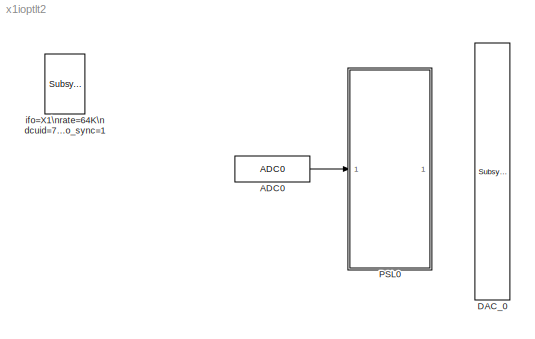
MODEL x1ioptlt2
KIND model
BLOCK [Reference] ADC0  REF=cdsAdcx0/ADC0
  AllowZeroVariantControls = off
  AttributesFormatString = %<Description>\\n%<Tag>
  Description = type-GSC_16AI64SSA\ncard_num=0
  GeneratePreprocessorConditionals = off
  Ports = [0, 1]
  PropagateVariantConditions = off
  SID = 1
  ShowPortLabels = FromPortIcon
  SourceBlock = cdsAdcx0/ADC0
  SourceType = SubSystem
  SystemSampleTime = -1
  Tag = cdsAdc
BLOCK [Reference] DAC_0  REF=dac/Subsystem  (lib defined in slx_40ef132df75b, slx_b7657ccccc5b, +4 more)
  AllowZeroVariantControls = off
  AttributesFormatString = %<Description>
  Description = type=GSC_16AO16,\ncard_num=0
  GeneratePreprocessorConditionals = off
  Ports = [16]
  PropagateVariantConditions = off
  SID = 952
  ShowPortLabels = FromPortIcon
  SourceBlock = dac/Subsystem
  SourceType = SubSystem
  SystemSampleTime = -1
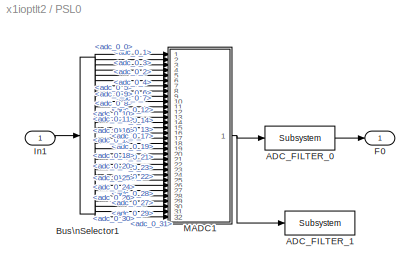
BLOCK [SubSystem] PSL0
  Ports = [1, 1]
  RequestExecContextInheritance = off
  SID = 937
BLOCK [Reference] PSL0/ADC_FILTER_0  REF=cdsFilt/Subsystem
  AllowZeroVariantControls = off
  AttributesFormatString = %<Tag>
  Description = Purpose:                                                                                                                                                                                                                                  \nStandard CDS IIR filter module.                                                                                                                                     ...<+1302ch>
  GeneratePreprocessorConditionals = off
  Ports = [1, 1]
  PropagateVariantConditions = off
  SID = 1477
  ShowPortLabels = FromPortIcon
  SourceBlock = cdsFilt/Subsystem
  SourceType = SubSystem
  SystemSampleTime = -1
  Tag = cdsFilt
BLOCK [Reference] PSL0/ADC_FILTER_1  REF=cdsFilt/Subsystem
  AllowZeroVariantControls = off
  AttributesFormatString = %<Tag>
  Description = Purpose:                                                                                                                                                                                                                                  \nStandard CDS IIR filter module.                                                                                                                                     ...<+1302ch>
  GeneratePreprocessorConditionals = off
  Ports = [1, 1]
  PropagateVariantConditions = off
  SID = 1478
  ShowPortLabels = FromPortIcon
  SourceBlock = cdsFilt/Subsystem
  SourceType = SubSystem
  SystemSampleTime = -1
  Tag = cdsFilt
BLOCK [BusSelector] PSL0/Bus\nSelector1
  AttributesFormatString = %<Description>
  Description = ADC Selector
  OutputAsBus = off
  OutputSignals = adc_0_0,adc_0_1,adc_0_2,adc_0_3,adc_0_4,adc_0_5,adc_0_6,adc_0_7,adc_0_8,adc_0_9,adc_0_10,adc_0_11,adc_0_12,adc_0_13,adc_0_14,adc_0_15,adc_0_16,adc_0_17,adc_0_18,adc_0_19,adc_0_20,adc_0_21,adc_0_22,adc_0_23,adc_0_24,adc_0_25,adc_0_26,adc_0_27,adc_0_28,adc_0_29,adc_0_30,adc_0_31
  Ports = [1, 32]
  SID = 1479
BLOCK [Outport] PSL0/F0
  IconDisplay = Port number
  SID = 1578
BLOCK [Inport] PSL0/In1
  IconDisplay = Port number
  SID = 1476
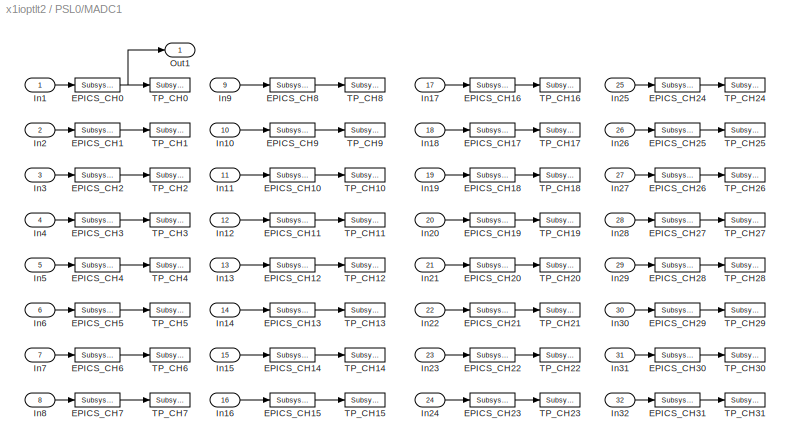
BLOCK [SubSystem] PSL0/MADC1
  Ports = [32, 1]
  RequestExecContextInheritance = off
  SID = 1480
BLOCK [Reference] PSL0/MADC1/EPICS_CH0  REF=cdsEpicsOut/Subsystem
  AllowZeroVariantControls = off
  AttributesFormatString = %<Tag>
  Description = Purpose:                                          \nOutput a FE signal to an EPICS channel.           \n                                                  \nOperation:                                        \nTakes input value and passes it to EPICS record.  \n                                                  \nUsage:                                            \nName the part with the desired EPICS...<+14ch>  <repeated x32 — deduplicated; at blocks: EPICS_CH0, EPICS_CH1, EPICS_CH10, EPICS_CH11, EPICS_CH12, EPICS_CH13, EPICS_CH14, EPICS_CH15, EPICS_CH16, EPICS_CH17, EPICS_CH18, EPICS_CH19, EPICS_CH2, EPICS_CH20, EPICS_CH21, EPICS_CH22, +16 more>
  GeneratePreprocessorConditionals = off
  Ports = [1, 1]
  PropagateVariantConditions = off
  SID = 1513
  ShowPortLabels = FromPortIcon
  SourceBlock = cdsEpicsOut/Subsystem
  SourceType = SubSystem
  SystemSampleTime = -1
  Tag = cdsEpicsOutput
BLOCK [Reference] PSL0/MADC1/EPICS_CH1  REF=cdsEpicsOut/Subsystem
  AllowZeroVariantControls = off
  AttributesFormatString = %<Tag>
  GeneratePreprocessorConditionals = off
  Ports = [1, 1]
  PropagateVariantConditions = off
  SID = 1514
  ShowPortLabels = FromPortIcon
  SourceBlock = cdsEpicsOut/Subsystem
  SourceType = SubSystem
  SystemSampleTime = -1
  Tag = cdsEpicsOutput
BLOCK [Reference] PSL0/MADC1/EPICS_CH10  REF=cdsEpicsOut/Subsystem
  AllowZeroVariantControls = off
  AttributesFormatString = %<Tag>
  GeneratePreprocessorConditionals = off
  Ports = [1, 1]
  PropagateVariantConditions = off
  SID = 1515
  ShowPortLabels = FromPortIcon
  SourceBlock = cdsEpicsOut/Subsystem
  SourceType = SubSystem
  SystemSampleTime = -1
  Tag = cdsEpicsOutput
BLOCK [Reference] PSL0/MADC1/EPICS_CH11  REF=cdsEpicsOut/Subsystem
  AllowZeroVariantControls = off
  AttributesFormatString = %<Tag>
  GeneratePreprocessorConditionals = off
  Ports = [1, 1]
  PropagateVariantConditions = off
  SID = 1516
  ShowPortLabels = FromPortIcon
  SourceBlock = cdsEpicsOut/Subsystem
  SourceType = SubSystem
  SystemSampleTime = -1
  Tag = cdsEpicsOutput
BLOCK [Reference] PSL0/MADC1/EPICS_CH12  REF=cdsEpicsOut/Subsystem
  AllowZeroVariantControls = off
  AttributesFormatString = %<Tag>
  GeneratePreprocessorConditionals = off
  Ports = [1, 1]
  PropagateVariantConditions = off
  SID = 1517
  ShowPortLabels = FromPortIcon
  SourceBlock = cdsEpicsOut/Subsystem
  SourceType = SubSystem
  SystemSampleTime = -1
  Tag = cdsEpicsOutput
BLOCK [Reference] PSL0/MADC1/EPICS_CH13  REF=cdsEpicsOut/Subsystem
  AllowZeroVariantControls = off
  AttributesFormatString = %<Tag>
  GeneratePreprocessorConditionals = off
  Ports = [1, 1]
  PropagateVariantConditions = off
  SID = 1518
  ShowPortLabels = FromPortIcon
  SourceBlock = cdsEpicsOut/Subsystem
  SourceType = SubSystem
  SystemSampleTime = -1
  Tag = cdsEpicsOutput
BLOCK [Reference] PSL0/MADC1/EPICS_CH14  REF=cdsEpicsOut/Subsystem
  AllowZeroVariantControls = off
  AttributesFormatString = %<Tag>
  GeneratePreprocessorConditionals = off
  Ports = [1, 1]
  PropagateVariantConditions = off
  SID = 1519
  ShowPortLabels = FromPortIcon
  SourceBlock = cdsEpicsOut/Subsystem
  SourceType = SubSystem
  SystemSampleTime = -1
  Tag = cdsEpicsOutput
BLOCK [Reference] PSL0/MADC1/EPICS_CH15  REF=cdsEpicsOut/Subsystem
  AllowZeroVariantControls = off
  AttributesFormatString = %<Tag>
  GeneratePreprocessorConditionals = off
  Ports = [1, 1]
  PropagateVariantConditions = off
  SID = 1520
  ShowPortLabels = FromPortIcon
  SourceBlock = cdsEpicsOut/Subsystem
  SourceType = SubSystem
  SystemSampleTime = -1
  Tag = cdsEpicsOutput
BLOCK [Reference] PSL0/MADC1/EPICS_CH16  REF=cdsEpicsOut/Subsystem
  AllowZeroVariantControls = off
  AttributesFormatString = %<Tag>
  GeneratePreprocessorConditionals = off
  Ports = [1, 1]
  PropagateVariantConditions = off
  SID = 1521
  ShowPortLabels = FromPortIcon
  SourceBlock = cdsEpicsOut/Subsystem
  SourceType = SubSystem
  SystemSampleTime = -1
  Tag = cdsEpicsOutput
BLOCK [Reference] PSL0/MADC1/EPICS_CH17  REF=cdsEpicsOut/Subsystem
  AllowZeroVariantControls = off
  AttributesFormatString = %<Tag>
  GeneratePreprocessorConditionals = off
  Ports = [1, 1]
  PropagateVariantConditions = off
  SID = 1522
  ShowPortLabels = FromPortIcon
  SourceBlock = cdsEpicsOut/Subsystem
  SourceType = SubSystem
  SystemSampleTime = -1
  Tag = cdsEpicsOutput
BLOCK [Reference] PSL0/MADC1/EPICS_CH18  REF=cdsEpicsOut/Subsystem
  AllowZeroVariantControls = off
  AttributesFormatString = %<Tag>
  GeneratePreprocessorConditionals = off
  Ports = [1, 1]
  PropagateVariantConditions = off
  SID = 1523
  ShowPortLabels = FromPortIcon
  SourceBlock = cdsEpicsOut/Subsystem
  SourceType = SubSystem
  SystemSampleTime = -1
  Tag = cdsEpicsOutput
BLOCK [Reference] PSL0/MADC1/EPICS_CH19  REF=cdsEpicsOut/Subsystem
  AllowZeroVariantControls = off
  AttributesFormatString = %<Tag>
  GeneratePreprocessorConditionals = off
  Ports = [1, 1]
  PropagateVariantConditions = off
  SID = 1524
  ShowPortLabels = FromPortIcon
  SourceBlock = cdsEpicsOut/Subsystem
  SourceType = SubSystem
  SystemSampleTime = -1
  Tag = cdsEpicsOutput
BLOCK [Reference] PSL0/MADC1/EPICS_CH2  REF=cdsEpicsOut/Subsystem
  AllowZeroVariantControls = off
  AttributesFormatString = %<Tag>
  GeneratePreprocessorConditionals = off
  Ports = [1, 1]
  PropagateVariantConditions = off
  SID = 1525
  ShowPortLabels = FromPortIcon
  SourceBlock = cdsEpicsOut/Subsystem
  SourceType = SubSystem
  SystemSampleTime = -1
  Tag = cdsEpicsOutput
BLOCK [Reference] PSL0/MADC1/EPICS_CH20  REF=cdsEpicsOut/Subsystem
  AllowZeroVariantControls = off
  AttributesFormatString = %<Tag>
  GeneratePreprocessorConditionals = off
  Ports = [1, 1]
  PropagateVariantConditions = off
  SID = 1526
  ShowPortLabels = FromPortIcon
  SourceBlock = cdsEpicsOut/Subsystem
  SourceType = SubSystem
  SystemSampleTime = -1
  Tag = cdsEpicsOutput
BLOCK [Reference] PSL0/MADC1/EPICS_CH21  REF=cdsEpicsOut/Subsystem
  AllowZeroVariantControls = off
  AttributesFormatString = %<Tag>
  GeneratePreprocessorConditionals = off
  Ports = [1, 1]
  PropagateVariantConditions = off
  SID = 1527
  ShowPortLabels = FromPortIcon
  SourceBlock = cdsEpicsOut/Subsystem
  SourceType = SubSystem
  SystemSampleTime = -1
  Tag = cdsEpicsOutput
BLOCK [Reference] PSL0/MADC1/EPICS_CH22  REF=cdsEpicsOut/Subsystem
  AllowZeroVariantControls = off
  AttributesFormatString = %<Tag>
  GeneratePreprocessorConditionals = off
  Ports = [1, 1]
  PropagateVariantConditions = off
  SID = 1528
  ShowPortLabels = FromPortIcon
  SourceBlock = cdsEpicsOut/Subsystem
  SourceType = SubSystem
  SystemSampleTime = -1
  Tag = cdsEpicsOutput
BLOCK [Reference] PSL0/MADC1/EPICS_CH23  REF=cdsEpicsOut/Subsystem
  AllowZeroVariantControls = off
  AttributesFormatString = %<Tag>
  GeneratePreprocessorConditionals = off
  Ports = [1, 1]
  PropagateVariantConditions = off
  SID = 1529
  ShowPortLabels = FromPortIcon
  SourceBlock = cdsEpicsOut/Subsystem
  SourceType = SubSystem
  SystemSampleTime = -1
  Tag = cdsEpicsOutput
BLOCK [Reference] PSL0/MADC1/EPICS_CH24  REF=cdsEpicsOut/Subsystem
  AllowZeroVariantControls = off
  AttributesFormatString = %<Tag>
  GeneratePreprocessorConditionals = off
  Ports = [1, 1]
  PropagateVariantConditions = off
  SID = 1530
  ShowPortLabels = FromPortIcon
  SourceBlock = cdsEpicsOut/Subsystem
  SourceType = SubSystem
  SystemSampleTime = -1
  Tag = cdsEpicsOutput
BLOCK [Reference] PSL0/MADC1/EPICS_CH25  REF=cdsEpicsOut/Subsystem
  AllowZeroVariantControls = off
  AttributesFormatString = %<Tag>
  GeneratePreprocessorConditionals = off
  Ports = [1, 1]
  PropagateVariantConditions = off
  SID = 1531
  ShowPortLabels = FromPortIcon
  SourceBlock = cdsEpicsOut/Subsystem
  SourceType = SubSystem
  SystemSampleTime = -1
  Tag = cdsEpicsOutput
BLOCK [Reference] PSL0/MADC1/EPICS_CH26  REF=cdsEpicsOut/Subsystem
  AllowZeroVariantControls = off
  AttributesFormatString = %<Tag>
  GeneratePreprocessorConditionals = off
  Ports = [1, 1]
  PropagateVariantConditions = off
  SID = 1532
  ShowPortLabels = FromPortIcon
  SourceBlock = cdsEpicsOut/Subsystem
  SourceType = SubSystem
  SystemSampleTime = -1
  Tag = cdsEpicsOutput
BLOCK [Reference] PSL0/MADC1/EPICS_CH27  REF=cdsEpicsOut/Subsystem
  AllowZeroVariantControls = off
  AttributesFormatString = %<Tag>
  GeneratePreprocessorConditionals = off
  Ports = [1, 1]
  PropagateVariantConditions = off
  SID = 1533
  ShowPortLabels = FromPortIcon
  SourceBlock = cdsEpicsOut/Subsystem
  SourceType = SubSystem
  SystemSampleTime = -1
  Tag = cdsEpicsOutput
BLOCK [Reference] PSL0/MADC1/EPICS_CH28  REF=cdsEpicsOut/Subsystem
  AllowZeroVariantControls = off
  AttributesFormatString = %<Tag>
  GeneratePreprocessorConditionals = off
  Ports = [1, 1]
  PropagateVariantConditions = off
  SID = 1534
  ShowPortLabels = FromPortIcon
  SourceBlock = cdsEpicsOut/Subsystem
  SourceType = SubSystem
  SystemSampleTime = -1
  Tag = cdsEpicsOutput
BLOCK [Reference] PSL0/MADC1/EPICS_CH29  REF=cdsEpicsOut/Subsystem
  AllowZeroVariantControls = off
  AttributesFormatString = %<Tag>
  GeneratePreprocessorConditionals = off
  Ports = [1, 1]
  PropagateVariantConditions = off
  SID = 1535
  ShowPortLabels = FromPortIcon
  SourceBlock = cdsEpicsOut/Subsystem
  SourceType = SubSystem
  SystemSampleTime = -1
  Tag = cdsEpicsOutput
BLOCK [Reference] PSL0/MADC1/EPICS_CH3  REF=cdsEpicsOut/Subsystem
  AllowZeroVariantControls = off
  AttributesFormatString = %<Tag>
  GeneratePreprocessorConditionals = off
  Ports = [1, 1]
  PropagateVariantConditions = off
  SID = 1536
  ShowPortLabels = FromPortIcon
  SourceBlock = cdsEpicsOut/Subsystem
  SourceType = SubSystem
  SystemSampleTime = -1
  Tag = cdsEpicsOutput
BLOCK [Reference] PSL0/MADC1/EPICS_CH30  REF=cdsEpicsOut/Subsystem
  AllowZeroVariantControls = off
  AttributesFormatString = %<Tag>
  GeneratePreprocessorConditionals = off
  Ports = [1, 1]
  PropagateVariantConditions = off
  SID = 1537
  ShowPortLabels = FromPortIcon
  SourceBlock = cdsEpicsOut/Subsystem
  SourceType = SubSystem
  SystemSampleTime = -1
  Tag = cdsEpicsOutput
BLOCK [Reference] PSL0/MADC1/EPICS_CH31  REF=cdsEpicsOut/Subsystem
  AllowZeroVariantControls = off
  AttributesFormatString = %<Tag>
  GeneratePreprocessorConditionals = off
  Ports = [1, 1]
  PropagateVariantConditions = off
  SID = 1538
  ShowPortLabels = FromPortIcon
  SourceBlock = cdsEpicsOut/Subsystem
  SourceType = SubSystem
  SystemSampleTime = -1
  Tag = cdsEpicsOutput
BLOCK [Reference] PSL0/MADC1/EPICS_CH4  REF=cdsEpicsOut/Subsystem
  AllowZeroVariantControls = off
  AttributesFormatString = %<Tag>
  GeneratePreprocessorConditionals = off
  Ports = [1, 1]
  PropagateVariantConditions = off
  SID = 1539
  ShowPortLabels = FromPortIcon
  SourceBlock = cdsEpicsOut/Subsystem
  SourceType = SubSystem
  SystemSampleTime = -1
  Tag = cdsEpicsOutput
BLOCK [Reference] PSL0/MADC1/EPICS_CH5  REF=cdsEpicsOut/Subsystem
  AllowZeroVariantControls = off
  AttributesFormatString = %<Tag>
  GeneratePreprocessorConditionals = off
  Ports = [1, 1]
  PropagateVariantConditions = off
  SID = 1540
  ShowPortLabels = FromPortIcon
  SourceBlock = cdsEpicsOut/Subsystem
  SourceType = SubSystem
  SystemSampleTime = -1
  Tag = cdsEpicsOutput
BLOCK [Reference] PSL0/MADC1/EPICS_CH6  REF=cdsEpicsOut/Subsystem
  AllowZeroVariantControls = off
  AttributesFormatString = %<Tag>
  GeneratePreprocessorConditionals = off
  Ports = [1, 1]
  PropagateVariantConditions = off
  SID = 1541
  ShowPortLabels = FromPortIcon
  SourceBlock = cdsEpicsOut/Subsystem
  SourceType = SubSystem
  SystemSampleTime = -1
  Tag = cdsEpicsOutput
BLOCK [Reference] PSL0/MADC1/EPICS_CH7  REF=cdsEpicsOut/Subsystem
  AllowZeroVariantControls = off
  AttributesFormatString = %<Tag>
  GeneratePreprocessorConditionals = off
  Ports = [1, 1]
  PropagateVariantConditions = off
  SID = 1542
  ShowPortLabels = FromPortIcon
  SourceBlock = cdsEpicsOut/Subsystem
  SourceType = SubSystem
  SystemSampleTime = -1
  Tag = cdsEpicsOutput
BLOCK [Reference] PSL0/MADC1/EPICS_CH8  REF=cdsEpicsOut/Subsystem
  AllowZeroVariantControls = off
  AttributesFormatString = %<Tag>
  GeneratePreprocessorConditionals = off
  Ports = [1, 1]
  PropagateVariantConditions = off
  SID = 1543
  ShowPortLabels = FromPortIcon
  SourceBlock = cdsEpicsOut/Subsystem
  SourceType = SubSystem
  SystemSampleTime = -1
  Tag = cdsEpicsOutput
BLOCK [Reference] PSL0/MADC1/EPICS_CH9  REF=cdsEpicsOut/Subsystem
  AllowZeroVariantControls = off
  AttributesFormatString = %<Tag>
  GeneratePreprocessorConditionals = off
  Ports = [1, 1]
  PropagateVariantConditions = off
  SID = 1544
  ShowPortLabels = FromPortIcon
  SourceBlock = cdsEpicsOut/Subsystem
  SourceType = SubSystem
  SystemSampleTime = -1
  Tag = cdsEpicsOutput
BLOCK [Inport] PSL0/MADC1/In1
  IconDisplay = Port number
  SID = 1481
BLOCK [Inport] PSL0/MADC1/In10
  IconDisplay = Port number
  Port = 10
  SID = 1490
BLOCK [Inport] PSL0/MADC1/In11
  IconDisplay = Port number
  Port = 11
  SID = 1491
BLOCK [Inport] PSL0/MADC1/In12
  IconDisplay = Port number
  Port = 12
  SID = 1492
BLOCK [Inport] PSL0/MADC1/In13
  IconDisplay = Port number
  Port = 13
  SID = 1493
BLOCK [Inport] PSL0/MADC1/In14
  IconDisplay = Port number
  Port = 14
  SID = 1494
BLOCK [Inport] PSL0/MADC1/In15
  IconDisplay = Port number
  Port = 15
  SID = 1495
BLOCK [Inport] PSL0/MADC1/In16
  IconDisplay = Port number
  Port = 16
  SID = 1496
BLOCK [Inport] PSL0/MADC1/In17
  IconDisplay = Port number
  Port = 17
  SID = 1497
BLOCK [Inport] PSL0/MADC1/In18
  IconDisplay = Port number
  Port = 18
  SID = 1498
BLOCK [Inport] PSL0/MADC1/In19
  IconDisplay = Port number
  Port = 19
  SID = 1499
BLOCK [Inport] PSL0/MADC1/In2
  IconDisplay = Port number
  Port = 2
  SID = 1482
BLOCK [Inport] PSL0/MADC1/In20
  IconDisplay = Port number
  Port = 20
  SID = 1500
BLOCK [Inport] PSL0/MADC1/In21
  IconDisplay = Port number
  Port = 21
  SID = 1501
BLOCK [Inport] PSL0/MADC1/In22
  IconDisplay = Port number
  Port = 22
  SID = 1502
BLOCK [Inport] PSL0/MADC1/In23
  IconDisplay = Port number
  Port = 23
  SID = 1503
BLOCK [Inport] PSL0/MADC1/In24
  IconDisplay = Port number
  Port = 24
  SID = 1504
BLOCK [Inport] PSL0/MADC1/In25
  IconDisplay = Port number
  Port = 25
  SID = 1505
BLOCK [Inport] PSL0/MADC1/In26
  IconDisplay = Port number
  Port = 26
  SID = 1506
BLOCK [Inport] PSL0/MADC1/In27
  IconDisplay = Port number
  Port = 27
  SID = 1507
BLOCK [Inport] PSL0/MADC1/In28
  IconDisplay = Port number
  Port = 28
  SID = 1508
BLOCK [Inport] PSL0/MADC1/In29
  IconDisplay = Port number
  Port = 29
  SID = 1509
BLOCK [Inport] PSL0/MADC1/In3
  IconDisplay = Port number
  Port = 3
  SID = 1483
BLOCK [Inport] PSL0/MADC1/In30
  IconDisplay = Port number
  Port = 30
  SID = 1510
BLOCK [Inport] PSL0/MADC1/In31
  IconDisplay = Port number
  Port = 31
  SID = 1511
BLOCK [Inport] PSL0/MADC1/In32
  IconDisplay = Port number
  Port = 32
  SID = 1512
BLOCK [Inport] PSL0/MADC1/In4
  IconDisplay = Port number
  Port = 4
  SID = 1484
BLOCK [Inport] PSL0/MADC1/In5
  IconDisplay = Port number
  Port = 5
  SID = 1485
BLOCK [Inport] PSL0/MADC1/In6
  IconDisplay = Port number
  Port = 6
  SID = 1486
BLOCK [Inport] PSL0/MADC1/In7
  IconDisplay = Port number
  Port = 7
  SID = 1487
BLOCK [Inport] PSL0/MADC1/In8
  IconDisplay = Port number
  Port = 8
  SID = 1488
BLOCK [Inport] PSL0/MADC1/In9
  IconDisplay = Port number
  Port = 9
  SID = 1489
BLOCK [Outport] PSL0/MADC1/Out1
  IconDisplay = Port number
  SID = 1577
BLOCK [Reference] PSL0/MADC1/TP_CH0  REF=cdsTP/Subsystem
  AllowZeroVariantControls = off
  AttributesFormatString = %<Tag>
  GeneratePreprocessorConditionals = off
  Ports = [1]
  PropagateVariantConditions = off
  SID = 1545
  ShowPortLabels = FromPortIcon
  SourceBlock = cdsTP/Subsystem
  SourceType = SubSystem
  SystemSampleTime = -1
  Tag = Test Point
BLOCK [Reference] PSL0/MADC1/TP_CH1  REF=cdsTP/Subsystem
  AllowZeroVariantControls = off
  AttributesFormatString = %<Tag>
  GeneratePreprocessorConditionals = off
  Ports = [1]
  PropagateVariantConditions = off
  SID = 1546
  ShowPortLabels = FromPortIcon
  SourceBlock = cdsTP/Subsystem
  SourceType = SubSystem
  SystemSampleTime = -1
  Tag = Test Point
BLOCK [Reference] PSL0/MADC1/TP_CH10  REF=cdsTP/Subsystem
  AllowZeroVariantControls = off
  AttributesFormatString = %<Tag>
  GeneratePreprocessorConditionals = off
  Ports = [1]
  PropagateVariantConditions = off
  SID = 1547
  ShowPortLabels = FromPortIcon
  SourceBlock = cdsTP/Subsystem
  SourceType = SubSystem
  SystemSampleTime = -1
  Tag = Test Point
BLOCK [Reference] PSL0/MADC1/TP_CH11  REF=cdsTP/Subsystem
  AllowZeroVariantControls = off
  AttributesFormatString = %<Tag>
  GeneratePreprocessorConditionals = off
  Ports = [1]
  PropagateVariantConditions = off
  SID = 1548
  ShowPortLabels = FromPortIcon
  SourceBlock = cdsTP/Subsystem
  SourceType = SubSystem
  SystemSampleTime = -1
  Tag = Test Point
BLOCK [Reference] PSL0/MADC1/TP_CH12  REF=cdsTP/Subsystem
  AllowZeroVariantControls = off
  AttributesFormatString = %<Tag>
  GeneratePreprocessorConditionals = off
  Ports = [1]
  PropagateVariantConditions = off
  SID = 1549
  ShowPortLabels = FromPortIcon
  SourceBlock = cdsTP/Subsystem
  SourceType = SubSystem
  SystemSampleTime = -1
  Tag = Test Point
BLOCK [Reference] PSL0/MADC1/TP_CH13  REF=cdsTP/Subsystem
  AllowZeroVariantControls = off
  AttributesFormatString = %<Tag>
  GeneratePreprocessorConditionals = off
  Ports = [1]
  PropagateVariantConditions = off
  SID = 1550
  ShowPortLabels = FromPortIcon
  SourceBlock = cdsTP/Subsystem
  SourceType = SubSystem
  SystemSampleTime = -1
  Tag = Test Point
BLOCK [Reference] PSL0/MADC1/TP_CH14  REF=cdsTP/Subsystem
  AllowZeroVariantControls = off
  AttributesFormatString = %<Tag>
  GeneratePreprocessorConditionals = off
  Ports = [1]
  PropagateVariantConditions = off
  SID = 1551
  ShowPortLabels = FromPortIcon
  SourceBlock = cdsTP/Subsystem
  SourceType = SubSystem
  SystemSampleTime = -1
  Tag = Test Point
BLOCK [Reference] PSL0/MADC1/TP_CH15  REF=cdsTP/Subsystem
  AllowZeroVariantControls = off
  AttributesFormatString = %<Tag>
  GeneratePreprocessorConditionals = off
  Ports = [1]
  PropagateVariantConditions = off
  SID = 1552
  ShowPortLabels = FromPortIcon
  SourceBlock = cdsTP/Subsystem
  SourceType = SubSystem
  SystemSampleTime = -1
  Tag = Test Point
BLOCK [Reference] PSL0/MADC1/TP_CH16  REF=cdsTP/Subsystem
  AllowZeroVariantControls = off
  AttributesFormatString = %<Tag>
  GeneratePreprocessorConditionals = off
  Ports = [1]
  PropagateVariantConditions = off
  SID = 1553
  ShowPortLabels = FromPortIcon
  SourceBlock = cdsTP/Subsystem
  SourceType = SubSystem
  SystemSampleTime = -1
  Tag = Test Point
BLOCK [Reference] PSL0/MADC1/TP_CH17  REF=cdsTP/Subsystem
  AllowZeroVariantControls = off
  AttributesFormatString = %<Tag>
  GeneratePreprocessorConditionals = off
  Ports = [1]
  PropagateVariantConditions = off
  SID = 1554
  ShowPortLabels = FromPortIcon
  SourceBlock = cdsTP/Subsystem
  SourceType = SubSystem
  SystemSampleTime = -1
  Tag = Test Point
BLOCK [Reference] PSL0/MADC1/TP_CH18  REF=cdsTP/Subsystem
  AllowZeroVariantControls = off
  AttributesFormatString = %<Tag>
  GeneratePreprocessorConditionals = off
  Ports = [1]
  PropagateVariantConditions = off
  SID = 1555
  ShowPortLabels = FromPortIcon
  SourceBlock = cdsTP/Subsystem
  SourceType = SubSystem
  SystemSampleTime = -1
  Tag = Test Point
BLOCK [Reference] PSL0/MADC1/TP_CH19  REF=cdsTP/Subsystem
  AllowZeroVariantControls = off
  AttributesFormatString = %<Tag>
  GeneratePreprocessorConditionals = off
  Ports = [1]
  PropagateVariantConditions = off
  SID = 1556
  ShowPortLabels = FromPortIcon
  SourceBlock = cdsTP/Subsystem
  SourceType = SubSystem
  SystemSampleTime = -1
  Tag = Test Point
BLOCK [Reference] PSL0/MADC1/TP_CH2  REF=cdsTP/Subsystem
  AllowZeroVariantControls = off
  AttributesFormatString = %<Tag>
  GeneratePreprocessorConditionals = off
  Ports = [1]
  PropagateVariantConditions = off
  SID = 1557
  ShowPortLabels = FromPortIcon
  SourceBlock = cdsTP/Subsystem
  SourceType = SubSystem
  SystemSampleTime = -1
  Tag = Test Point
BLOCK [Reference] PSL0/MADC1/TP_CH20  REF=cdsTP/Subsystem
  AllowZeroVariantControls = off
  AttributesFormatString = %<Tag>
  GeneratePreprocessorConditionals = off
  Ports = [1]
  PropagateVariantConditions = off
  SID = 1558
  ShowPortLabels = FromPortIcon
  SourceBlock = cdsTP/Subsystem
  SourceType = SubSystem
  SystemSampleTime = -1
  Tag = Test Point
BLOCK [Reference] PSL0/MADC1/TP_CH21  REF=cdsTP/Subsystem
  AllowZeroVariantControls = off
  AttributesFormatString = %<Tag>
  GeneratePreprocessorConditionals = off
  Ports = [1]
  PropagateVariantConditions = off
  SID = 1559
  ShowPortLabels = FromPortIcon
  SourceBlock = cdsTP/Subsystem
  SourceType = SubSystem
  SystemSampleTime = -1
  Tag = Test Point
BLOCK [Reference] PSL0/MADC1/TP_CH22  REF=cdsTP/Subsystem
  AllowZeroVariantControls = off
  AttributesFormatString = %<Tag>
  GeneratePreprocessorConditionals = off
  Ports = [1]
  PropagateVariantConditions = off
  SID = 1560
  ShowPortLabels = FromPortIcon
  SourceBlock = cdsTP/Subsystem
  SourceType = SubSystem
  SystemSampleTime = -1
  Tag = Test Point
BLOCK [Reference] PSL0/MADC1/TP_CH23  REF=cdsTP/Subsystem
  AllowZeroVariantControls = off
  AttributesFormatString = %<Tag>
  GeneratePreprocessorConditionals = off
  Ports = [1]
  PropagateVariantConditions = off
  SID = 1561
  ShowPortLabels = FromPortIcon
  SourceBlock = cdsTP/Subsystem
  SourceType = SubSystem
  SystemSampleTime = -1
  Tag = Test Point
BLOCK [Reference] PSL0/MADC1/TP_CH24  REF=cdsTP/Subsystem
  AllowZeroVariantControls = off
  AttributesFormatString = %<Tag>
  GeneratePreprocessorConditionals = off
  Ports = [1]
  PropagateVariantConditions = off
  SID = 1562
  ShowPortLabels = FromPortIcon
  SourceBlock = cdsTP/Subsystem
  SourceType = SubSystem
  SystemSampleTime = -1
  Tag = Test Point
BLOCK [Reference] PSL0/MADC1/TP_CH25  REF=cdsTP/Subsystem
  AllowZeroVariantControls = off
  AttributesFormatString = %<Tag>
  GeneratePreprocessorConditionals = off
  Ports = [1]
  PropagateVariantConditions = off
  SID = 1563
  ShowPortLabels = FromPortIcon
  SourceBlock = cdsTP/Subsystem
  SourceType = SubSystem
  SystemSampleTime = -1
  Tag = Test Point
BLOCK [Reference] PSL0/MADC1/TP_CH26  REF=cdsTP/Subsystem
  AllowZeroVariantControls = off
  AttributesFormatString = %<Tag>
  GeneratePreprocessorConditionals = off
  Ports = [1]
  PropagateVariantConditions = off
  SID = 1564
  ShowPortLabels = FromPortIcon
  SourceBlock = cdsTP/Subsystem
  SourceType = SubSystem
  SystemSampleTime = -1
  Tag = Test Point
BLOCK [Reference] PSL0/MADC1/TP_CH27  REF=cdsTP/Subsystem
  AllowZeroVariantControls = off
  AttributesFormatString = %<Tag>
  GeneratePreprocessorConditionals = off
  Ports = [1]
  PropagateVariantConditions = off
  SID = 1565
  ShowPortLabels = FromPortIcon
  SourceBlock = cdsTP/Subsystem
  SourceType = SubSystem
  SystemSampleTime = -1
  Tag = Test Point
BLOCK [Reference] PSL0/MADC1/TP_CH28  REF=cdsTP/Subsystem
  AllowZeroVariantControls = off
  AttributesFormatString = %<Tag>
  GeneratePreprocessorConditionals = off
  Ports = [1]
  PropagateVariantConditions = off
  SID = 1566
  ShowPortLabels = FromPortIcon
  SourceBlock = cdsTP/Subsystem
  SourceType = SubSystem
  SystemSampleTime = -1
  Tag = Test Point
BLOCK [Reference] PSL0/MADC1/TP_CH29  REF=cdsTP/Subsystem
  AllowZeroVariantControls = off
  AttributesFormatString = %<Tag>
  GeneratePreprocessorConditionals = off
  Ports = [1]
  PropagateVariantConditions = off
  SID = 1567
  ShowPortLabels = FromPortIcon
  SourceBlock = cdsTP/Subsystem
  SourceType = SubSystem
  SystemSampleTime = -1
  Tag = Test Point
BLOCK [Reference] PSL0/MADC1/TP_CH3  REF=cdsTP/Subsystem
  AllowZeroVariantControls = off
  AttributesFormatString = %<Tag>
  GeneratePreprocessorConditionals = off
  Ports = [1]
  PropagateVariantConditions = off
  SID = 1568
  ShowPortLabels = FromPortIcon
  SourceBlock = cdsTP/Subsystem
  SourceType = SubSystem
  SystemSampleTime = -1
  Tag = Test Point
BLOCK [Reference] PSL0/MADC1/TP_CH30  REF=cdsTP/Subsystem
  AllowZeroVariantControls = off
  AttributesFormatString = %<Tag>
  GeneratePreprocessorConditionals = off
  Ports = [1]
  PropagateVariantConditions = off
  SID = 1569
  ShowPortLabels = FromPortIcon
  SourceBlock = cdsTP/Subsystem
  SourceType = SubSystem
  SystemSampleTime = -1
  Tag = Test Point
BLOCK [Reference] PSL0/MADC1/TP_CH31  REF=cdsTP/Subsystem
  AllowZeroVariantControls = off
  AttributesFormatString = %<Tag>
  GeneratePreprocessorConditionals = off
  Ports = [1]
  PropagateVariantConditions = off
  SID = 1570
  ShowPortLabels = FromPortIcon
  SourceBlock = cdsTP/Subsystem
  SourceType = SubSystem
  SystemSampleTime = -1
  Tag = Test Point
BLOCK [Reference] PSL0/MADC1/TP_CH4  REF=cdsTP/Subsystem
  AllowZeroVariantControls = off
  AttributesFormatString = %<Tag>
  GeneratePreprocessorConditionals = off
  Ports = [1]
  PropagateVariantConditions = off
  SID = 1571
  ShowPortLabels = FromPortIcon
  SourceBlock = cdsTP/Subsystem
  SourceType = SubSystem
  SystemSampleTime = -1
  Tag = Test Point
BLOCK [Reference] PSL0/MADC1/TP_CH5  REF=cdsTP/Subsystem
  AllowZeroVariantControls = off
  AttributesFormatString = %<Tag>
  GeneratePreprocessorConditionals = off
  Ports = [1]
  PropagateVariantConditions = off
  SID = 1572
  ShowPortLabels = FromPortIcon
  SourceBlock = cdsTP/Subsystem
  SourceType = SubSystem
  SystemSampleTime = -1
  Tag = Test Point
BLOCK [Reference] PSL0/MADC1/TP_CH6  REF=cdsTP/Subsystem
  AllowZeroVariantControls = off
  AttributesFormatString = %<Tag>
  GeneratePreprocessorConditionals = off
  Ports = [1]
  PropagateVariantConditions = off
  SID = 1573
  ShowPortLabels = FromPortIcon
  SourceBlock = cdsTP/Subsystem
  SourceType = SubSystem
  SystemSampleTime = -1
  Tag = Test Point
BLOCK [Reference] PSL0/MADC1/TP_CH7  REF=cdsTP/Subsystem
  AllowZeroVariantControls = off
  AttributesFormatString = %<Tag>
  GeneratePreprocessorConditionals = off
  Ports = [1]
  PropagateVariantConditions = off
  SID = 1574
  ShowPortLabels = FromPortIcon
  SourceBlock = cdsTP/Subsystem
  SourceType = SubSystem
  SystemSampleTime = -1
  Tag = Test Point
BLOCK [Reference] PSL0/MADC1/TP_CH8  REF=cdsTP/Subsystem
  AllowZeroVariantControls = off
  AttributesFormatString = %<Tag>
  GeneratePreprocessorConditionals = off
  Ports = [1]
  PropagateVariantConditions = off
  SID = 1575
  ShowPortLabels = FromPortIcon
  SourceBlock = cdsTP/Subsystem
  SourceType = SubSystem
  SystemSampleTime = -1
  Tag = Test Point
BLOCK [Reference] PSL0/MADC1/TP_CH9  REF=cdsTP/Subsystem
  AllowZeroVariantControls = off
  AttributesFormatString = %<Tag>
  GeneratePreprocessorConditionals = off
  Ports = [1]
  PropagateVariantConditions = off
  SID = 1576
  ShowPortLabels = FromPortIcon
  SourceBlock = cdsTP/Subsystem
  SourceType = SubSystem
  SystemSampleTime = -1
  Tag = Test Point
BLOCK [Reference] ifo=X1\nrate=64K\ndcuid=78\nhost=dhcp-154\niop_model=1\nno_sync=1  REF=cdsParameters/Subsystem
  AllowZeroVariantControls = off
  AttributesFormatString = %<Tag>
  GeneratePreprocessorConditionals = off
  Ports = []
  PropagateVariantConditions = off
  SID = 911
  ShowPortLabels = FromPortIcon
  SourceBlock = cdsParameters/Subsystem
  SourceType = SubSystem
  SystemSampleTime = -1
  Tag = cdsParameters
LINE ADC0:1 -> PSL0:1
LINE PSL0/ADC_FILTER_0:1 -> PSL0/F0:1
LINE PSL0/Bus\nSelector1:1 -> PSL0/MADC1:1
LINE PSL0/Bus\nSelector1:10 -> PSL0/MADC1:10
LINE PSL0/Bus\nSelector1:11 -> PSL0/MADC1:11
LINE PSL0/Bus\nSelector1:12 -> PSL0/MADC1:12
LINE PSL0/Bus\nSelector1:13 -> PSL0/MADC1:13
LINE PSL0/Bus\nSelector1:14 -> PSL0/MADC1:14
LINE PSL0/Bus\nSelector1:15 -> PSL0/MADC1:15
LINE PSL0/Bus\nSelector1:16 -> PSL0/MADC1:16
LINE PSL0/Bus\nSelector1:17 -> PSL0/MADC1:17
LINE PSL0/Bus\nSelector1:18 -> PSL0/MADC1:18
LINE PSL0/Bus\nSelector1:19 -> PSL0/MADC1:19
LINE PSL0/Bus\nSelector1:2 -> PSL0/MADC1:2
LINE PSL0/Bus\nSelector1:20 -> PSL0/MADC1:20
LINE PSL0/Bus\nSelector1:21 -> PSL0/MADC1:21
LINE PSL0/Bus\nSelector1:22 -> PSL0/MADC1:22
LINE PSL0/Bus\nSelector1:23 -> PSL0/MADC1:23
LINE PSL0/Bus\nSelector1:24 -> PSL0/MADC1:24
LINE PSL0/Bus\nSelector1:25 -> PSL0/MADC1:25
LINE PSL0/Bus\nSelector1:26 -> PSL0/MADC1:26
LINE PSL0/Bus\nSelector1:27 -> PSL0/MADC1:27
LINE PSL0/Bus\nSelector1:28 -> PSL0/MADC1:28
LINE PSL0/Bus\nSelector1:29 -> PSL0/MADC1:29
LINE PSL0/Bus\nSelector1:3 -> PSL0/MADC1:3
LINE PSL0/Bus\nSelector1:30 -> PSL0/MADC1:30
LINE PSL0/Bus\nSelector1:31 -> PSL0/MADC1:31
LINE PSL0/Bus\nSelector1:32 -> PSL0/MADC1:32
LINE PSL0/Bus\nSelector1:4 -> PSL0/MADC1:4
LINE PSL0/Bus\nSelector1:5 -> PSL0/MADC1:5
LINE PSL0/Bus\nSelector1:6 -> PSL0/MADC1:6
LINE PSL0/Bus\nSelector1:7 -> PSL0/MADC1:7
LINE PSL0/Bus\nSelector1:8 -> PSL0/MADC1:8
LINE PSL0/Bus\nSelector1:9 -> PSL0/MADC1:9
LINE PSL0/In1:1 -> PSL0/Bus\nSelector1:1
NET PSL0/MADC1/EPICS_CH0:1 -> PSL0/MADC1/Out1:1, PSL0/MADC1/TP_CH0:1
LINE PSL0/MADC1/EPICS_CH10:1 -> PSL0/MADC1/TP_CH10:1
LINE PSL0/MADC1/EPICS_CH11:1 -> PSL0/MADC1/TP_CH11:1
LINE PSL0/MADC1/EPICS_CH12:1 -> PSL0/MADC1/TP_CH12:1
LINE PSL0/MADC1/EPICS_CH13:1 -> PSL0/MADC1/TP_CH13:1
LINE PSL0/MADC1/EPICS_CH14:1 -> PSL0/MADC1/TP_CH14:1
LINE PSL0/MADC1/EPICS_CH15:1 -> PSL0/MADC1/TP_CH15:1
LINE PSL0/MADC1/EPICS_CH16:1 -> PSL0/MADC1/TP_CH16:1
LINE PSL0/MADC1/EPICS_CH17:1 -> PSL0/MADC1/TP_CH17:1
LINE PSL0/MADC1/EPICS_CH18:1 -> PSL0/MADC1/TP_CH18:1
LINE PSL0/MADC1/EPICS_CH19:1 -> PSL0/MADC1/TP_CH19:1
LINE PSL0/MADC1/EPICS_CH1:1 -> PSL0/MADC1/TP_CH1:1
LINE PSL0/MADC1/EPICS_CH20:1 -> PSL0/MADC1/TP_CH20:1
LINE PSL0/MADC1/EPICS_CH21:1 -> PSL0/MADC1/TP_CH21:1
LINE PSL0/MADC1/EPICS_CH22:1 -> PSL0/MADC1/TP_CH22:1
LINE PSL0/MADC1/EPICS_CH23:1 -> PSL0/MADC1/TP_CH23:1
LINE PSL0/MADC1/EPICS_CH24:1 -> PSL0/MADC1/TP_CH24:1
LINE PSL0/MADC1/EPICS_CH25:1 -> PSL0/MADC1/TP_CH25:1
LINE PSL0/MADC1/EPICS_CH26:1 -> PSL0/MADC1/TP_CH26:1
LINE PSL0/MADC1/EPICS_CH27:1 -> PSL0/MADC1/TP_CH27:1
LINE PSL0/MADC1/EPICS_CH28:1 -> PSL0/MADC1/TP_CH28:1
LINE PSL0/MADC1/EPICS_CH29:1 -> PSL0/MADC1/TP_CH29:1
LINE PSL0/MADC1/EPICS_CH2:1 -> PSL0/MADC1/TP_CH2:1
LINE PSL0/MADC1/EPICS_CH30:1 -> PSL0/MADC1/TP_CH30:1
LINE PSL0/MADC1/EPICS_CH31:1 -> PSL0/MADC1/TP_CH31:1
LINE PSL0/MADC1/EPICS_CH3:1 -> PSL0/MADC1/TP_CH3:1
LINE PSL0/MADC1/EPICS_CH4:1 -> PSL0/MADC1/TP_CH4:1
LINE PSL0/MADC1/EPICS_CH5:1 -> PSL0/MADC1/TP_CH5:1
LINE PSL0/MADC1/EPICS_CH6:1 -> PSL0/MADC1/TP_CH6:1
LINE PSL0/MADC1/EPICS_CH7:1 -> PSL0/MADC1/TP_CH7:1
LINE PSL0/MADC1/EPICS_CH8:1 -> PSL0/MADC1/TP_CH8:1
LINE PSL0/MADC1/EPICS_CH9:1 -> PSL0/MADC1/TP_CH9:1
LINE PSL0/MADC1/In10:1 -> PSL0/MADC1/EPICS_CH9:1
LINE PSL0/MADC1/In11:1 -> PSL0/MADC1/EPICS_CH10:1
LINE PSL0/MADC1/In12:1 -> PSL0/MADC1/EPICS_CH11:1
LINE PSL0/MADC1/In13:1 -> PSL0/MADC1/EPICS_CH12:1
LINE PSL0/MADC1/In14:1 -> PSL0/MADC1/EPICS_CH13:1
LINE PSL0/MADC1/In15:1 -> PSL0/MADC1/EPICS_CH14:1
LINE PSL0/MADC1/In16:1 -> PSL0/MADC1/EPICS_CH15:1
LINE PSL0/MADC1/In17:1 -> PSL0/MADC1/EPICS_CH16:1
LINE PSL0/MADC1/In18:1 -> PSL0/MADC1/EPICS_CH17:1
LINE PSL0/MADC1/In19:1 -> PSL0/MADC1/EPICS_CH18:1
LINE PSL0/MADC1/In1:1 -> PSL0/MADC1/EPICS_CH0:1
LINE PSL0/MADC1/In20:1 -> PSL0/MADC1/EPICS_CH19:1
LINE PSL0/MADC1/In21:1 -> PSL0/MADC1/EPICS_CH20:1
LINE PSL0/MADC1/In22:1 -> PSL0/MADC1/EPICS_CH21:1
LINE PSL0/MADC1/In23:1 -> PSL0/MADC1/EPICS_CH22:1
LINE PSL0/MADC1/In24:1 -> PSL0/MADC1/EPICS_CH23:1
LINE PSL0/MADC1/In25:1 -> PSL0/MADC1/EPICS_CH24:1
LINE PSL0/MADC1/In26:1 -> PSL0/MADC1/EPICS_CH25:1
LINE PSL0/MADC1/In27:1 -> PSL0/MADC1/EPICS_CH26:1
LINE PSL0/MADC1/In28:1 -> PSL0/MADC1/EPICS_CH27:1
LINE PSL0/MADC1/In29:1 -> PSL0/MADC1/EPICS_CH28:1
LINE PSL0/MADC1/In2:1 -> PSL0/MADC1/EPICS_CH1:1
LINE PSL0/MADC1/In30:1 -> PSL0/MADC1/EPICS_CH29:1
LINE PSL0/MADC1/In31:1 -> PSL0/MADC1/EPICS_CH30:1
LINE PSL0/MADC1/In32:1 -> PSL0/MADC1/EPICS_CH31:1
LINE PSL0/MADC1/In3:1 -> PSL0/MADC1/EPICS_CH2:1
LINE PSL0/MADC1/In4:1 -> PSL0/MADC1/EPICS_CH3:1
LINE PSL0/MADC1/In5:1 -> PSL0/MADC1/EPICS_CH4:1
LINE PSL0/MADC1/In6:1 -> PSL0/MADC1/EPICS_CH5:1
LINE PSL0/MADC1/In7:1 -> PSL0/MADC1/EPICS_CH6:1
LINE PSL0/MADC1/In8:1 -> PSL0/MADC1/EPICS_CH7:1
LINE PSL0/MADC1/In9:1 -> PSL0/MADC1/EPICS_CH8:1
NET PSL0/MADC1:1 -> PSL0/ADC_FILTER_0:1, PSL0/ADC_FILTER_1:1
note: NET lines group one-source signal fan-out (src -> all destinations, sorted); 1:1 wires keep LINE
